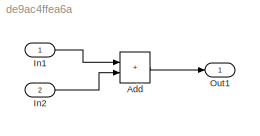
MODEL slx_de9ac4ffea6a
KIND model
CONFIG AbsTol = auto
CONFIG EnableMultiTasking = off
CONFIG FixedStep = 0.01
CONFIG MaxStep = auto
CONFIG MinStep = auto
CONFIG RelTol = 1e-3
CONFIG SampleTimeConstraint = Unconstrained
CONFIG SolverName = FixedStepDiscrete
CONFIG StartTime = 0.0
CONFIG StopTime = 10.0
WORKSPACE source: mxarray member
WORKSPACE In1: MoTeC.InParameter (value not decoded)
WORKSPACE In2: MoTeC.InParameter (value not decoded)
WORKSPACE Out1: MoTeC.Channel (value not decoded)
BLOCK [Sum] Add
  IconShape = rectangular
BLOCK [Inport] In1
BLOCK [Inport] In2
  Port = 2
BLOCK [Outport] Out1
LINE Add:1 -> Out1:1
LINE In1:1 -> Add:1
LINE In2:1 -> Add:2
